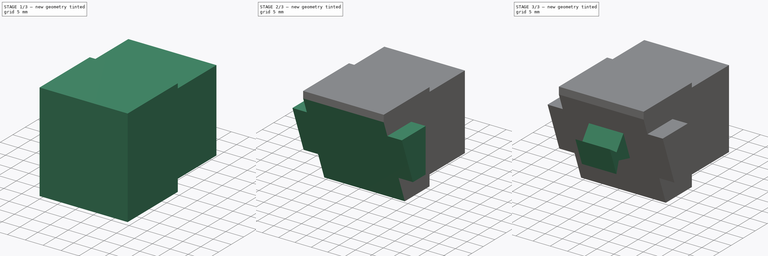
[diagram: build sequence overview — one tinted view per stage of 3, left to right]
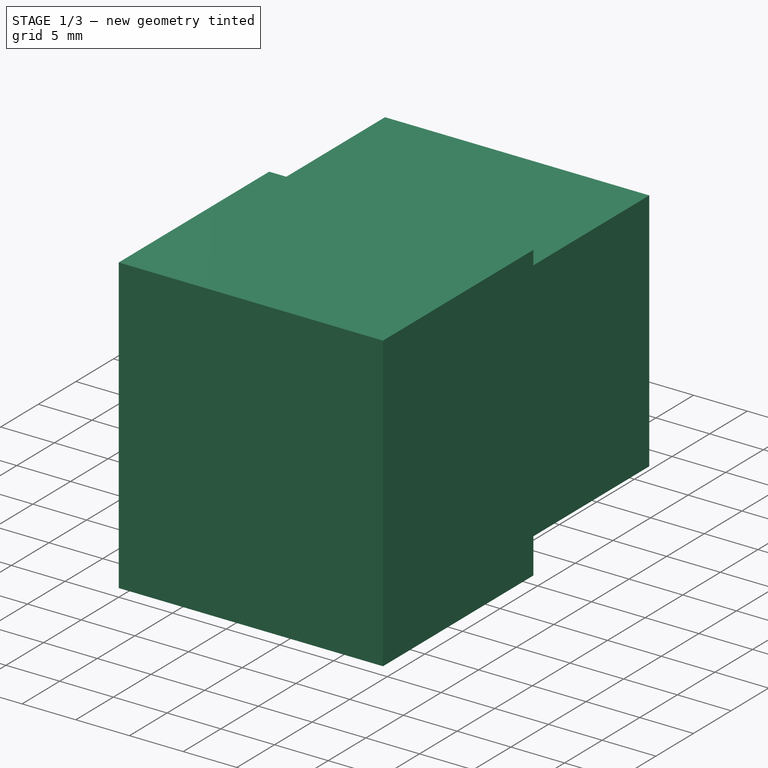
[diagram: stage 1 of 3 — iso view after this stage's code; geometry added in this stage tinted green]
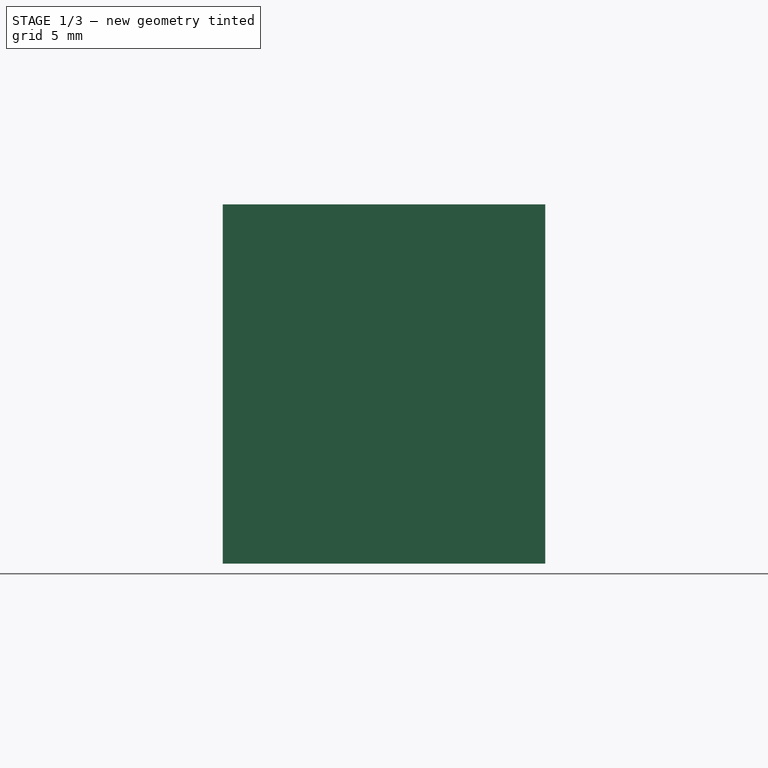
[diagram: stage 1 of 3 — front view after this stage's code; geometry added in this stage tinted green]
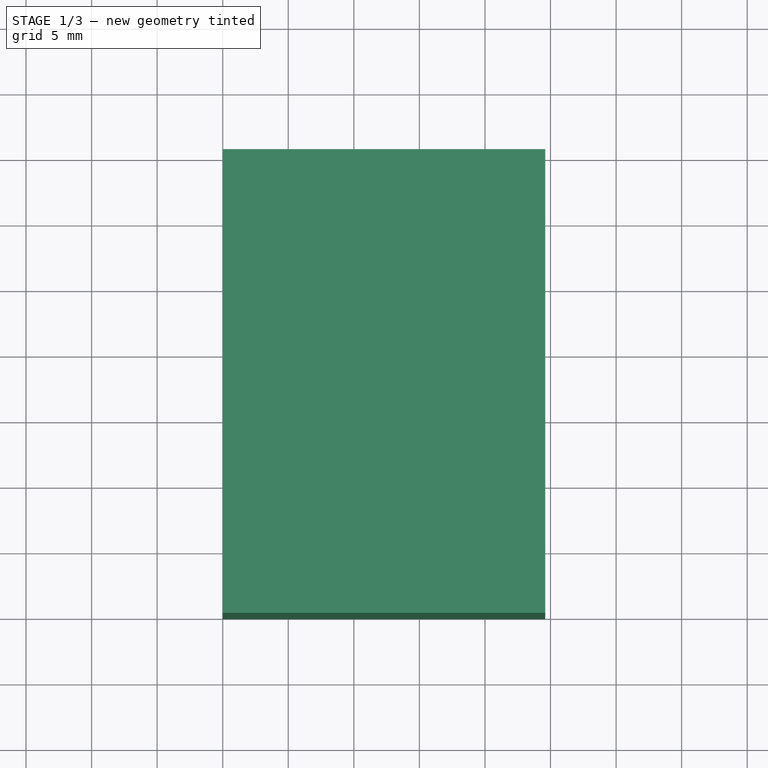
[diagram: stage 1 of 3 — top view after this stage's code; geometry added in this stage tinted green]
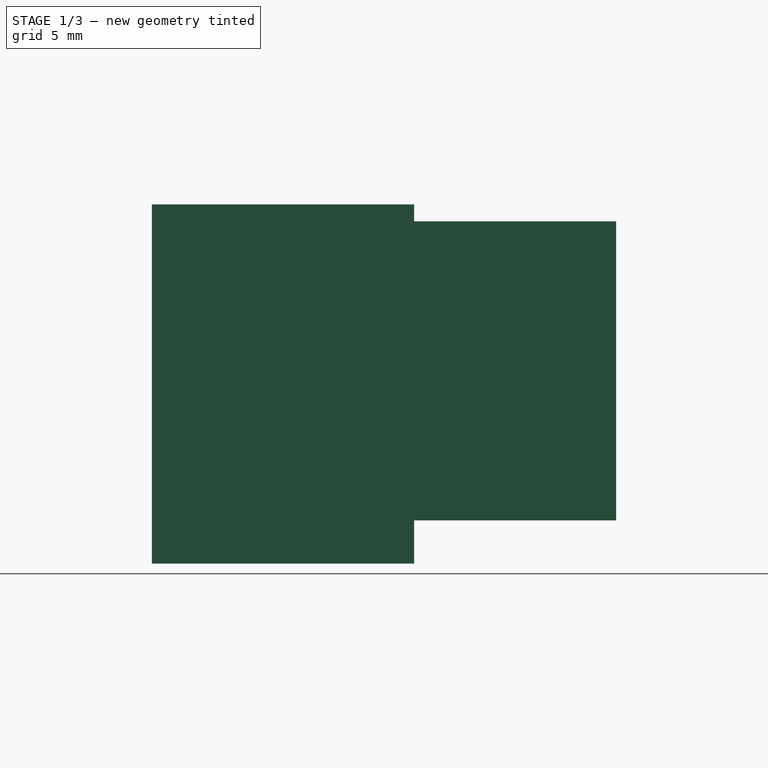
[diagram: stage 1 of 3 — right view after this stage's code; geometry added in this stage tinted green]
FCSTD DOCUMENT  (FreeCAD 0.20R29177 +426 (Git))
Label: portaVasos_centroV3
License: All rights reserved
LicenseURL: http://en.wikipedia.org/wiki/All_rights_reserved
objects: Sketcher::SketchObject×7, PartDesign::Pad×5, PartDesign::Pocket×2, PartDesign::Plane×2, PartDesign::Body×1, App::Part×1
note: 24 computed .brp shape members not serialized (recipe doc carries the construction recipe); baked Part::Feature solids carry a one-line shape summary decoded from their .brp

FEATURE [Sketcher::SketchObject] Sketch
  FullyConstrained = true
  MapMode = 5
  Placement = pos=(0,0,0) rot=(1,0,0;1.5708rad)
  Support = -> [XZ_Plane001]
  sketch-geometry (5):
    g0: GeomPoint X=0 Y=1 Z=0
    g1: LineSegment StartX=0 StartY=1 StartZ=0 EndX=24.6 EndY=1 EndZ=0
    g2: LineSegment StartX=24.6 StartY=1 StartZ=0 EndX=24.6 EndY=23.8 EndZ=0
    g3: LineSegment StartX=24.6 StartY=23.8 StartZ=0 EndX=0 EndY=23.8 EndZ=0
    g4: LineSegment StartX=0 StartY=23.8 StartZ=0 EndX=0 EndY=1 EndZ=0
  constraints (13):
    c: DistanceX(g-1,g0) = 0
    c: DistanceY(g-1,g0) = 1
    c: Coincident(g1,g2)
    c: Coincident(g2,g3)
    c: Coincident(g3,g4)
    c: Coincident(g4,g1)
    c: Horizontal(g1)
    c: Horizontal(g3)
    c: Vertical(g2)
    c: Vertical(g4)
    c: Coincident(g1,g0)
    c: DistanceX(g3,g3) = 24.6
    c: DistanceY(g2,g2) = 22.8
FEATURE [PartDesign::Pad] Pad
  Direction = (0,-1,-2e-16)
  Length = 25.4
  Length2 = 10
  Placement = pos=(0,0,0) rot=(1,0,0;1.5708rad)
  Profile = -> Sketch
  ReferenceAxis = -> Sketch [N_Axis]
  Reversed = true
  Type = 0
FEATURE [Sketcher::SketchObject] Sketch005
  FullyConstrained = true
  MapMode = 5
  Placement = pos=(0,0,0) rot=(1,0,0;1.5708rad)
  Support = -> [XZ_Plane001]
  sketch-geometry (5):
    g0: GeomPoint X=0 Y=-2.3 Z=0
    g1: LineSegment StartX=0 StartY=-2.3 StartZ=0 EndX=24.6 EndY=-2.3 EndZ=0
    g2: LineSegment StartX=24.6 StartY=-2.3 StartZ=0 EndX=24.6 EndY=25.1 EndZ=0
    g3: LineSegment StartX=24.6 StartY=25.1 StartZ=0 EndX=0 EndY=25.1 EndZ=0
    g4: LineSegment StartX=0 StartY=25.1 StartZ=0 EndX=0 EndY=-2.3 EndZ=0
  constraints (13):
    c: DistanceY(g0,g-1) = 2.3
    c: DistanceX(g-1,g0) = 0
    c: Coincident(g1,g2)
    c: Coincident(g2,g3)
    c: Coincident(g3,g4)
    c: Coincident(g4,g1)
    c: Horizontal(g1)
    c: Horizontal(g3)
    c: Vertical(g2)
    c: Vertical(g4)
    c: Coincident(g1,g0)
    c: DistanceX(g1,g1) = 24.6
    c: DistanceY(g2,g2) = 27.4
FEATURE [PartDesign::Pad] Pad003
  BaseFeature = -> Pad
  Direction = (0,-1,-2e-16)
  Length = 10
  Length2 = 10
  Placement = pos=(0,0,0) rot=(1,0,0;1.5708rad)
  Profile = -> Sketch005
  ReferenceAxis = -> Sketch005 [N_Axis]
  Reversed = true
  Type = 4
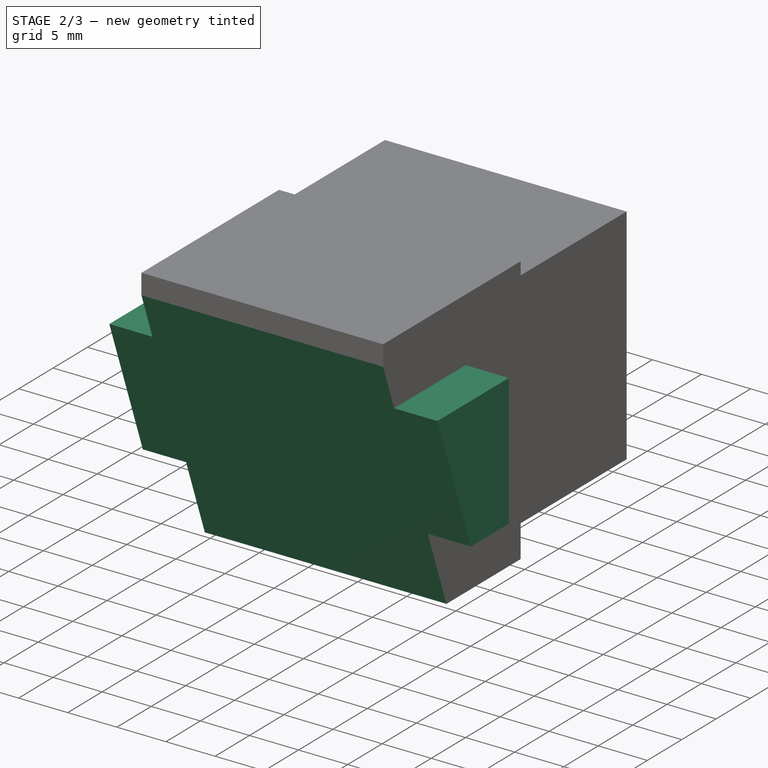
[diagram: stage 2 of 3 — iso view after this stage's code; geometry added in this stage tinted green]
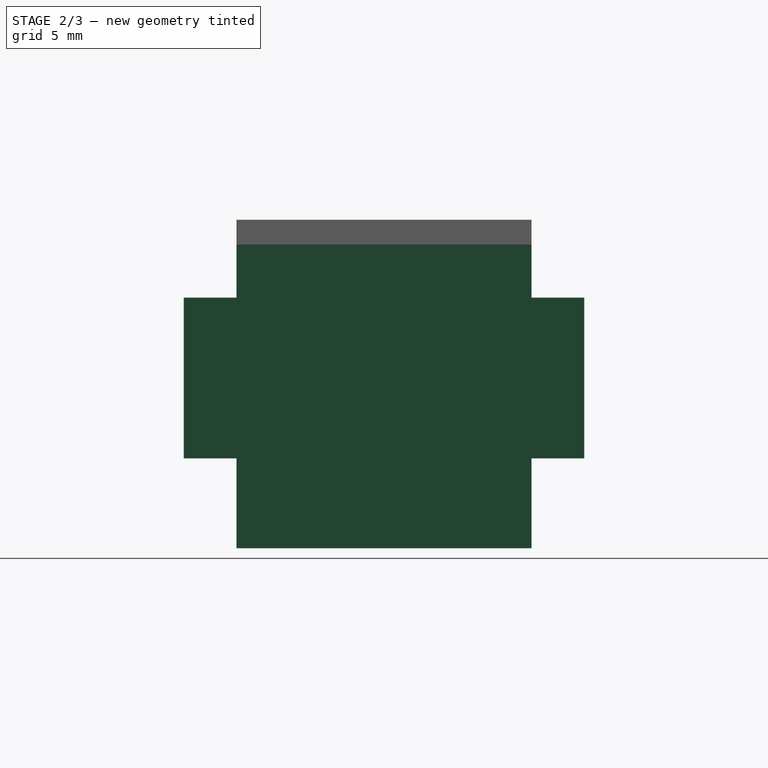
[diagram: stage 2 of 3 — front view after this stage's code; geometry added in this stage tinted green]
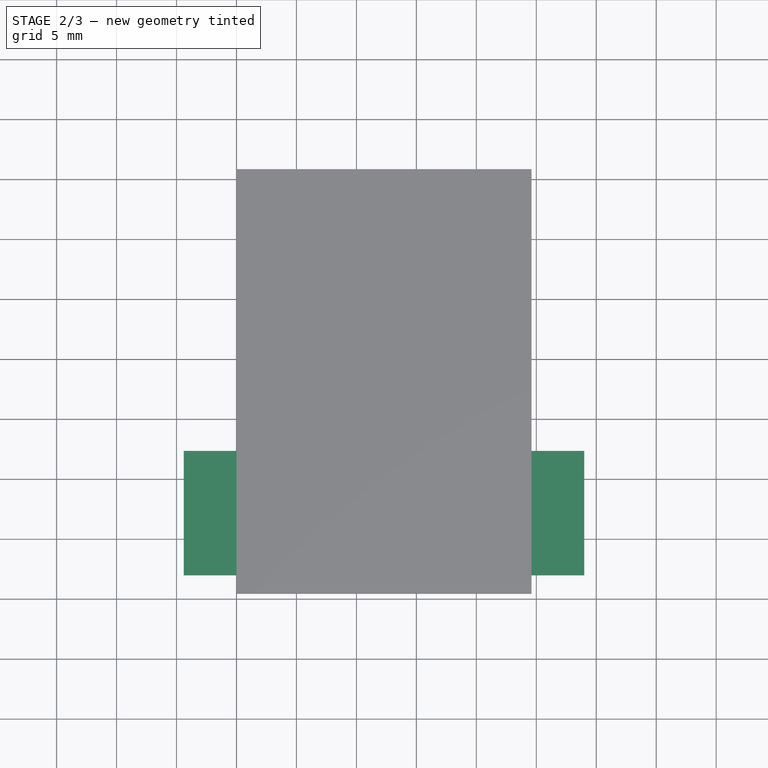
[diagram: stage 2 of 3 — top view after this stage's code; geometry added in this stage tinted green]
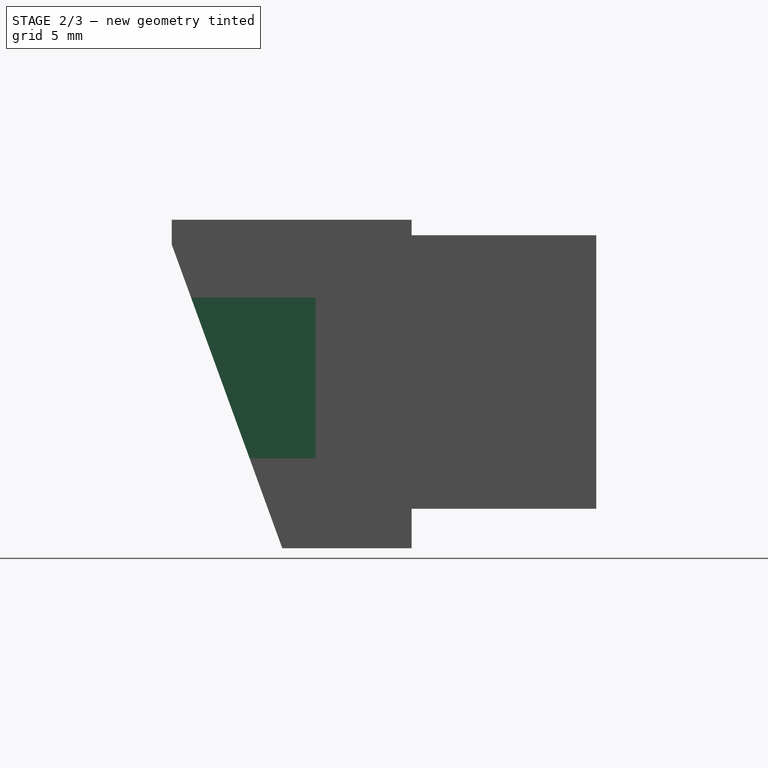
[diagram: stage 2 of 3 — right view after this stage's code; geometry added in this stage tinted green]
FEATURE [Sketcher::SketchObject] Sketch011
  FullyConstrained = true
  MapMode = 5
  Placement = pos=(0,0,0) rot=(1,0,0;1.5708rad)
  Support = -> [XZ_Plane001]
  sketch-geometry (4):
    g0: LineSegment StartX=-4.4 StartY=5.2 StartZ=0 EndX=0 EndY=5.2 EndZ=0
    g1: LineSegment StartX=0 StartY=5.2 StartZ=0 EndX=0 EndY=18.6 EndZ=0
    g2: LineSegment StartX=0 StartY=18.6 StartZ=0 EndX=-4.4 EndY=18.6 EndZ=0
    g3: LineSegment StartX=-4.4 StartY=18.6 StartZ=0 EndX=-4.4 EndY=5.2 EndZ=0
  constraints (12):
    c: DistanceY(g-1,g0) = 5.2
    c: Coincident(g0,g1)
    c: Coincident(g1,g2)
    c: Coincident(g2,g3)
    c: Coincident(g3,g0)
    c: Horizontal(g0)
    c: Horizontal(g2)
    c: Vertical(g1)
    c: Vertical(g3)
    c: DistanceY(g1,g1) = 13.4
    c: DistanceX(g0,g0) = 4.4
    c: DistanceX(g-1,g0) = -4.4
FEATURE [PartDesign::Pad] Pad004
  BaseFeature = -> Pad003
  Direction = (0,-1,-2e-16)
  Length = 10
  Length2 = 2
  Placement = pos=(0,0,0) rot=(1,0,0;1.5708rad)
  Profile = -> Sketch011
  ReferenceAxis = -> Sketch011 [N_Axis]
  Type = 4
FEATURE [Sketcher::SketchObject] Sketch012
  FullyConstrained = true
  MapMode = 5
  Placement = pos=(0,0,0) rot=(1,0,0;1.5708rad)
  sketch-geometry (4):
    g0: LineSegment StartX=24.6 StartY=5.2 StartZ=0 EndX=29 EndY=5.2 EndZ=0
    g1: LineSegment StartX=29 StartY=5.2 StartZ=0 EndX=29 EndY=18.6 EndZ=0
    g2: LineSegment StartX=29 StartY=18.6 StartZ=0 EndX=24.6 EndY=18.6 EndZ=0
    g3: LineSegment StartX=24.6 StartY=18.6 StartZ=0 EndX=24.6 EndY=5.2 EndZ=0
  constraints (12):
    c: DistanceY(g-1,g0) = 5.2
    c: Coincident(g0,g1)
    c: Coincident(g1,g2)
    c: Coincident(g2,g3)
    c: Coincident(g3,g0)
    c: Horizontal(g0)
    c: Horizontal(g2)
    c: Vertical(g1)
    c: Vertical(g3)
    c: DistanceY(g1,g1) = 13.4
    c: DistanceX(g0,g0) = 4.4
    c: DistanceX(g-1,g0) = 24.6
FEATURE [PartDesign::Pad] Pad005
  BaseFeature = -> Pad004
  Direction = (0,-1,2e-16)
  Length = 10
  Length2 = 2
  Placement = pos=(0,0,0) rot=(1,0,0;1.5708rad)
  Profile = -> Sketch012
  ReferenceAxis = -> Sketch012 [N_Axis]
  Type = 4
FEATURE [Sketcher::SketchObject] Sketch013
  ExternalGeometry = -> [Pad005]
  FullyConstrained = false
  MapMode = 5
  Placement = pos=(0,0,0) rot=(0.57735,0.57735,0.57735;2.0944rad)
  Support = -> [YZ_Plane001]
  sketch-geometry (3):
    g0: LineSegment StartX=-0.7794 StartY=-2.3 StartZ=0 EndX=-10 EndY=-2.3 EndZ=0
    g1: LineSegment StartX=-10 StartY=-2.3 StartZ=0 EndX=-10 EndY=23.0334 EndZ=0
    g2: LineSegment StartX=-0.7794 StartY=-2.3 StartZ=0 EndX=-10 EndY=23.0334 EndZ=0
  constraints (7):
    c: Coincident(g0,g1)
    c: Horizontal(g0)
    c: Vertical(g1)
    c: DistanceX(g0,g0) = 9.2206
    c: DistanceY(g1,g-3) = 27.4
    c: Angle(g2,g0) = 1.22173
    c: Coincident(g1,g2)
FEATURE [PartDesign::Pocket] Pocket
  BaseFeature = -> Pad005
  Direction = (-1,2e-16,-3e-16)
  Length = 4.4
  Length2 = 29
  Placement = pos=(0,0,0) rot=(1,0,0;1.5708rad)
  Profile = -> Sketch013
  ReferenceAxis = -> Sketch013 [N_Axis]
  Type = 4
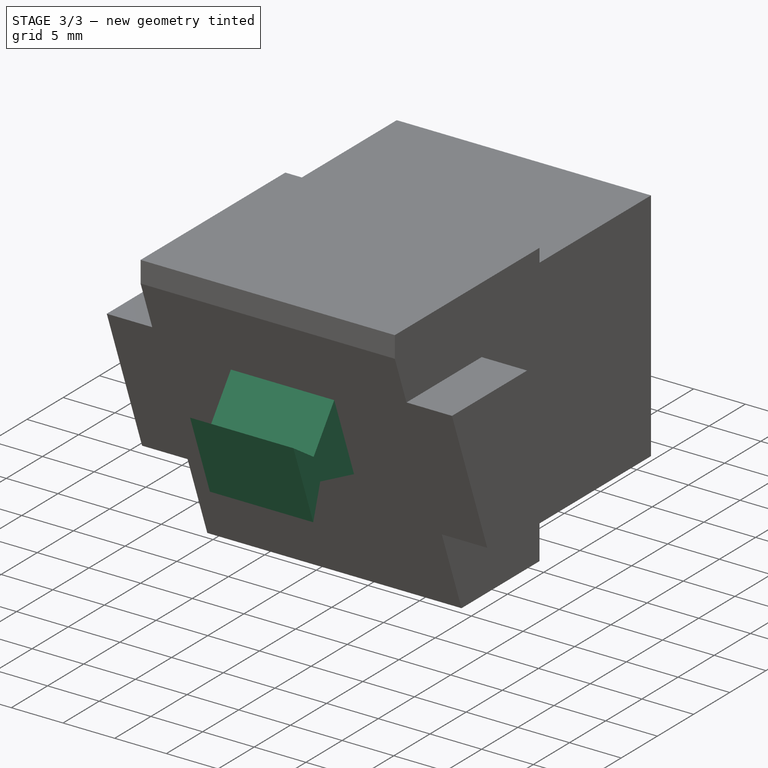
[diagram: stage 3 of 3 — iso view after this stage's code; geometry added in this stage tinted green]
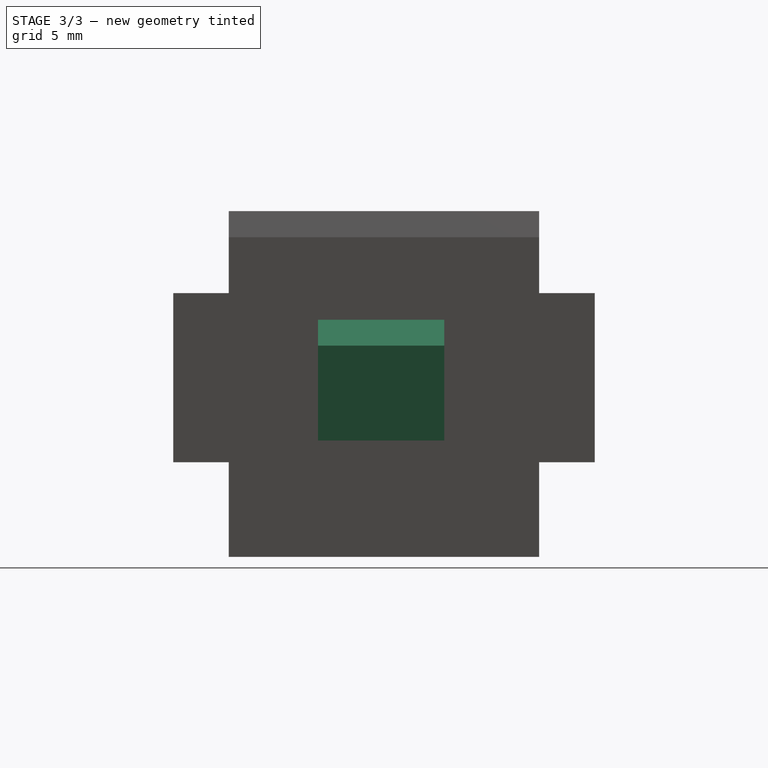
[diagram: stage 3 of 3 — front view after this stage's code; geometry added in this stage tinted green]
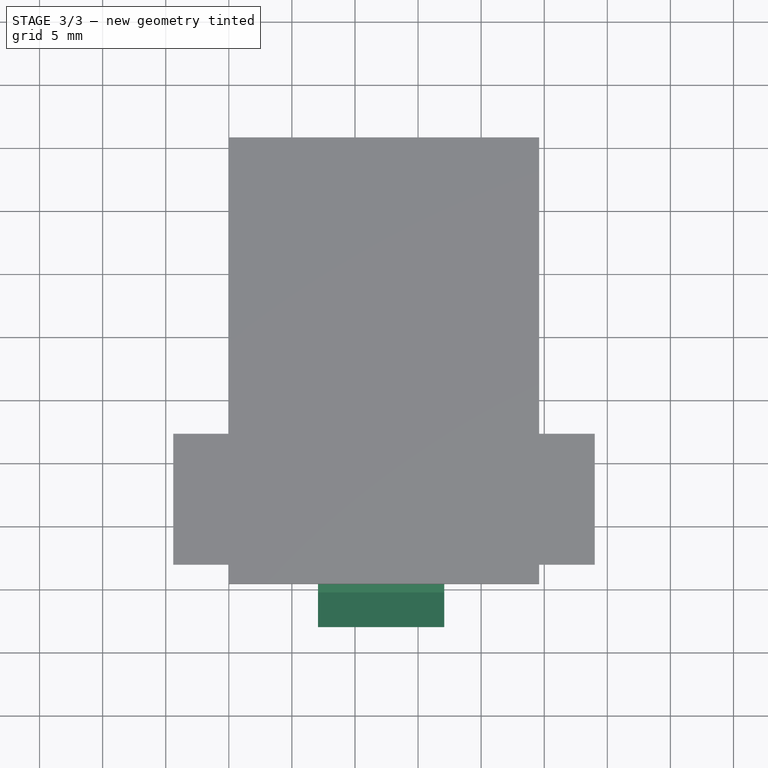
[diagram: stage 3 of 3 — top view after this stage's code; geometry added in this stage tinted green]
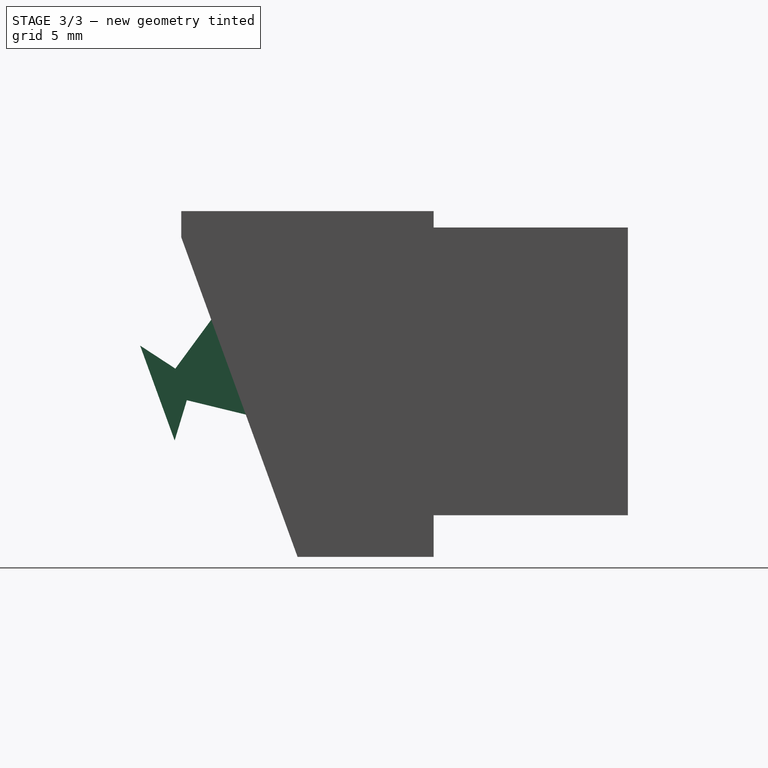
[diagram: stage 3 of 3 — right view after this stage's code; geometry added in this stage tinted green]
FEATURE [PartDesign::Plane] DatumPlane
  Length = 61.3213
  MapMode = 5
  Placement = pos=(-2e-16,-1.42743,-0.519543) rot=(1,0,0;1.91986rad)
  ResizeMode = 0
  Support = -> [Pocket]
  Width = 75.4069
FEATURE [Sketcher::SketchObject] Sketch014
  FullyConstrained = false
  MapMode = 5
  Placement = pos=(-2e-16,-1.42743,-0.519543) rot=(1,0,0;1.91986rad)
  Support = -> [DatumPlane]
  sketch-geometry (6):
    g0: GeomPoint X=12.0719 Y=14.1065 Z=0
    g1: LineSegment StartX=7.07194 StartY=18.1065 StartZ=0 EndX=7.07194 EndY=10.1065 EndZ=0
    g2: LineSegment StartX=7.07194 StartY=10.1065 StartZ=0 EndX=17.0719 EndY=10.1065 EndZ=0
    g3: LineSegment StartX=17.0719 StartY=10.1065 StartZ=0 EndX=17.0719 EndY=18.1065 EndZ=0
    g4: LineSegment StartX=17.0719 StartY=18.1065 StartZ=0 EndX=7.07194 EndY=18.1065 EndZ=0
    g5: GeomPoint X=12.0719 Y=14.1065 Z=0
  constraints (12):
    c: Coincident(g1,g2)
    c: Coincident(g2,g3)
    c: Coincident(g3,g4)
    c: Coincident(g4,g1)
    c: Horizontal(g2)
    c: Horizontal(g4)
    c: Vertical(g1)
    c: Vertical(g3)
    c: Symmetric(g2,g1,g5)
    c: Coincident(g5,g0)
    c: DistanceX(g4,g4) = 10
    c: DistanceY(g3,g3) = 8
FEATURE [PartDesign::Pad] Pad006
  BaseFeature = -> Pocket
  Direction = (-1e-16,-0.939693,-0.34202)
  Length = 6
  Length2 = 10
  Placement = pos=(0,0,0) rot=(1,0,0;1.5708rad)
  Profile = -> Sketch014
  ReferenceAxis = -> Sketch014 [N_Axis]
  Type = 0
FEATURE [PartDesign::Plane] DatumPlane001
  Length = 76.9028
  MapMode = 45
  Placement = pos=(17.0719,-9.07121,11.7102) rot=(0.633687,0.443713,0.633687;2.30637rad)
  ResizeMode = 0
  Support = -> [Pad006]
  Width = 76.9028
FEATURE [Sketcher::SketchObject] Sketch015
  ExternalGeometry = -> [Pad006]
  FullyConstrained = false
  MapMode = 5
  Placement = pos=(17.0719,-9.07121,11.7102) rot=(0.633687,0.443713,0.633687;2.30637rad)
  Support = -> [DatumPlane001]
  sketch-geometry (7):
    g0: GeomPoint X=-3 Y=0 Z=0
    g1: LineSegment StartX=-1 StartY=-1.33333 StartZ=0 EndX=3 EndY=-4 EndZ=0
    g2: LineSegment StartX=-3 StartY=-4 StartZ=0 EndX=-1 EndY=-1.33333 EndZ=0
    g3: LineSegment StartX=-3 StartY=4 StartZ=0 EndX=3 EndY=4 EndZ=0
    g4: LineSegment StartX=3 StartY=4 StartZ=0 EndX=-1 EndY=1.33333 EndZ=0
    g5: LineSegment StartX=-3 StartY=4 StartZ=0 EndX=-1 EndY=1.33333 EndZ=0
    g6: LineSegment StartX=-3 StartY=-4 StartZ=0 EndX=3 EndY=-4 EndZ=0
  constraints (11):
    c: DistanceY(g-1,g0) = 0
    c: DistanceX(g0,g-1) = 3
    c: Coincident(g1,g-4)
    c: Coincident(g2,g-4)
    c: Coincident(g1,g2)
    c: Coincident(g3,g-5)
    c: Coincident(g4,g3)
    c: Coincident(g5,g3)
    c: Coincident(g4,g5)
    c: Coincident(g6,g2)
    c: Coincident(g6,g1)
FEATURE [PartDesign::Pocket] Pocket001
  BaseFeature = -> Pad006
  Direction = (-1,0,0)
  Length = 10
  Length2 = 5
  Placement = pos=(0,0,0) rot=(1,0,0;1.5708rad)
  Profile = -> Sketch015
  ReferenceAxis = -> Sketch015 [N_Axis]
  Type = 0
FEATURE [PartDesign::Body] Body
  Group = -> [Sketch,Pad,Sketch005,Pad003,Sketch011,Pad004,Sketch012,Pad005,Sketch013,Pocket,DatumPlane,Sketch014,Pad006,DatumPlane001,Sketch015,Pocket001]
  Origin = -> Origin001
  Tip = -> Pocket001
FEATURE [App::Part] Part
  Group = -> [Body]
  Origin = -> Origin
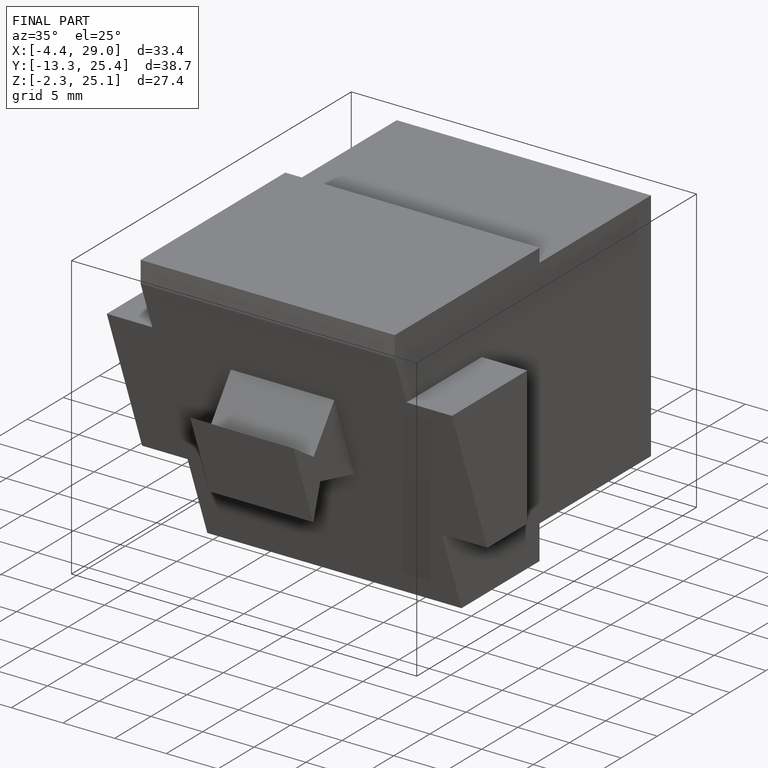
[diagram: finished part — iso view with bounding-box wireframe]
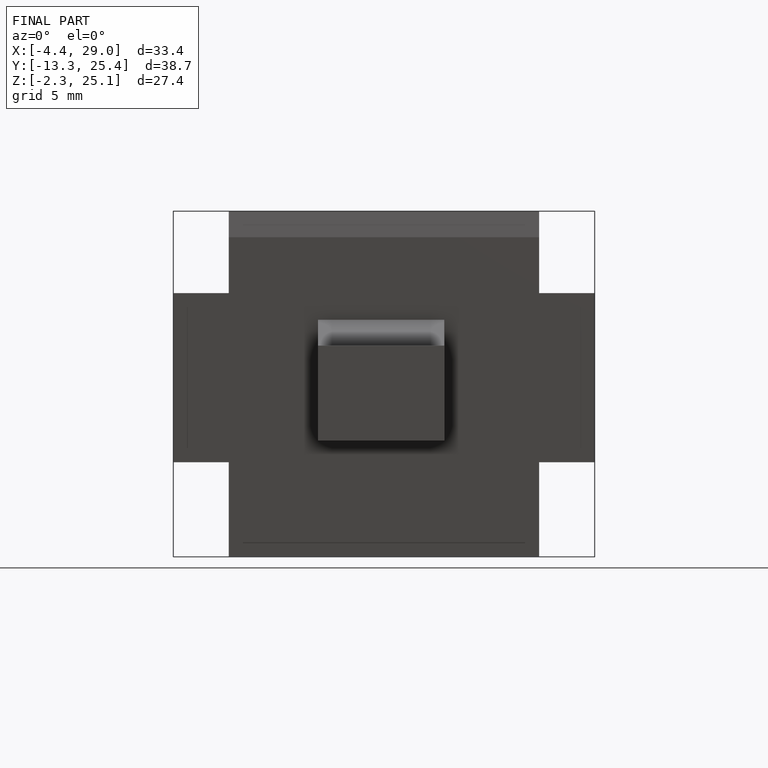
[diagram: finished part — front view with bounding-box wireframe]
